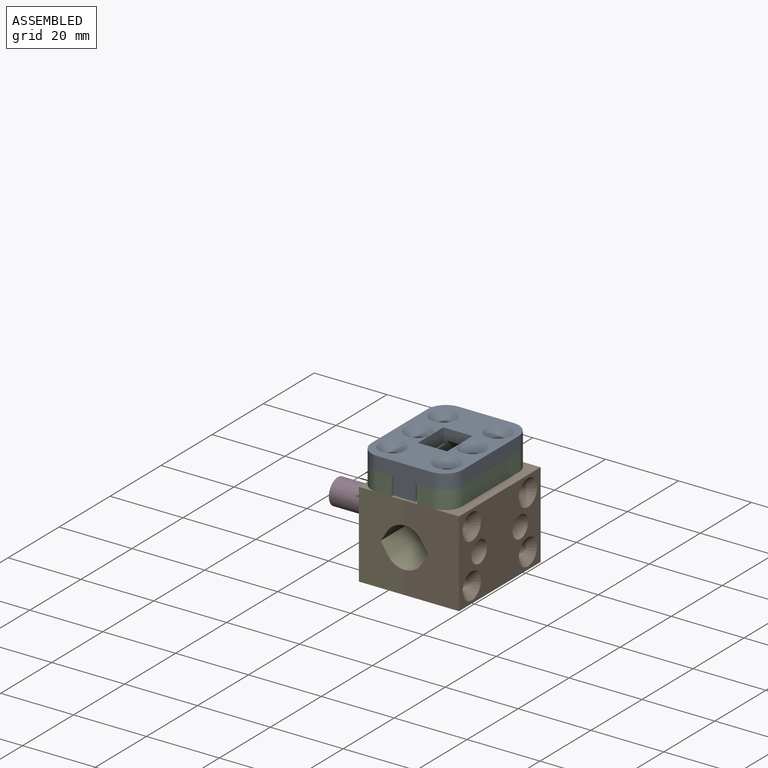
[diagram: assembled view]
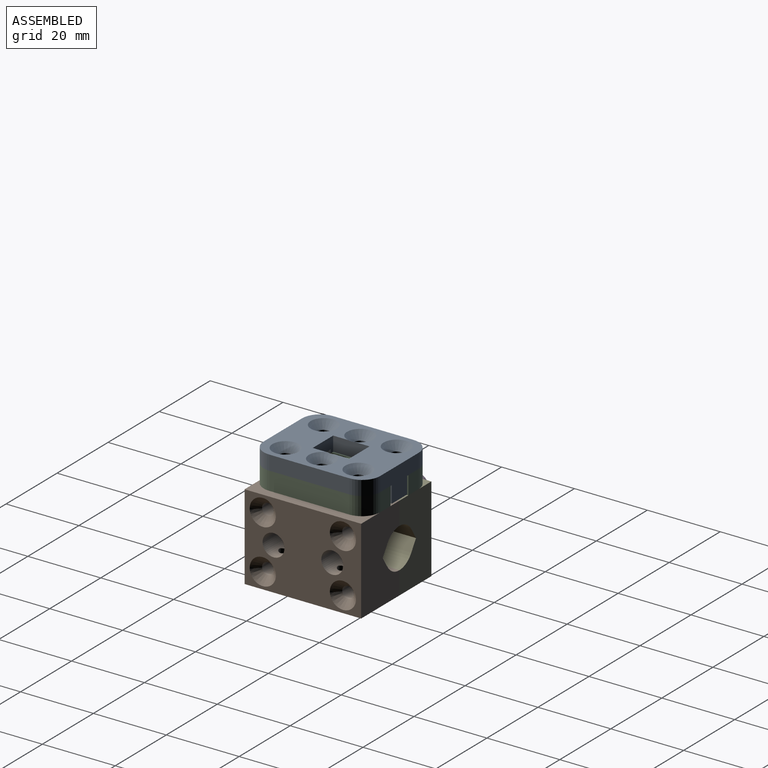
[diagram: assembled view, second angle]
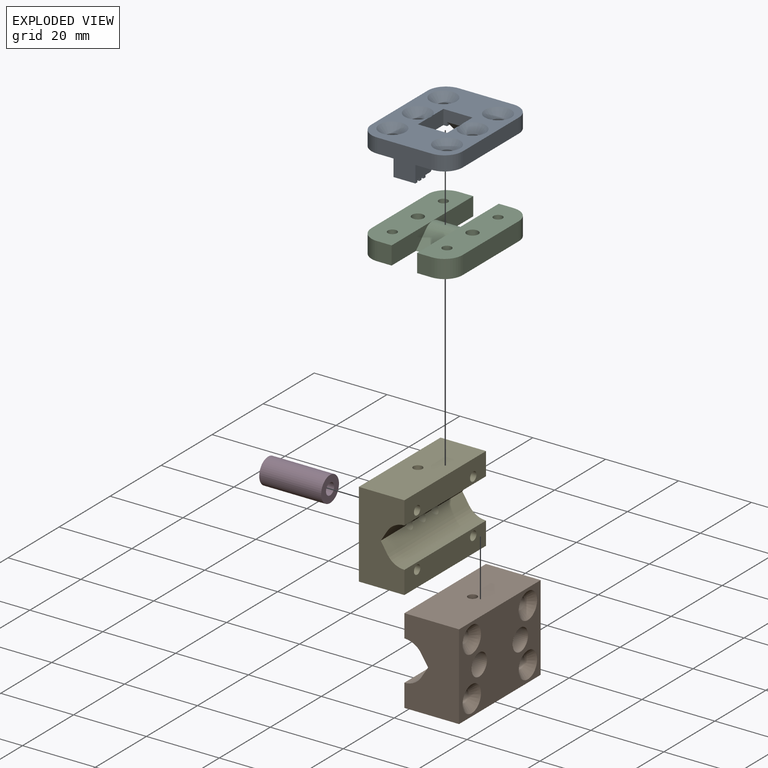
[diagram: exploded view]
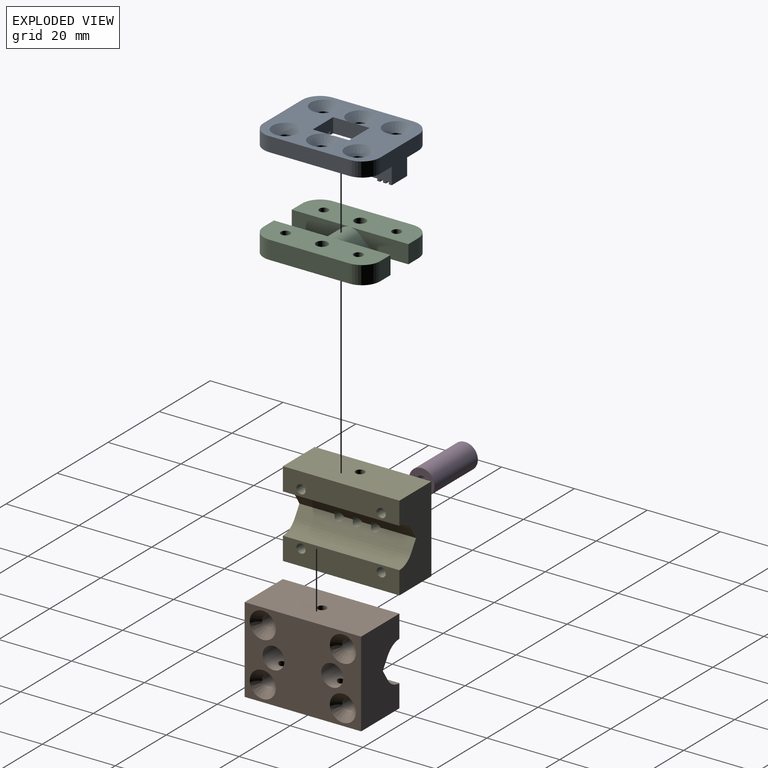
[diagram: exploded view, second angle]
ASSEMBLY  parts=5 mates=4
PART A: 59 faces, bbox 25x32x8.6 mm
  f0: plane 6x0.6mm, normal (0,1,0), area 3.6mm2, adj f1,f14,f15,f16
  f1: plane 6x0.8mm, normal (0,0,-1), area 4.8mm2, adj f0,f2,f15,f16
  f2: plane 6x0.6mm, normal (0,-1,0), area 3.6mm2, adj f1,f3,f15,f16
  f3: plane 6x0.8mm, normal (0,0,-1), area 4.8mm2, adj f2,f4,f15,f16
  f4: plane 6x0.6mm, normal (0,1,0), area 3.6mm2, adj f3,f5,f15,f16
  f5: plane 6x2mm, normal (0,0,-1), area 12mm2, adj f4,f6,f15,f16
  f6: plane 6x5mm, normal (0,0.71,-0.71), area 42.4mm2, adj f5,f7,f15,f16,f18,f24
  f7: plane 8x4mm, normal (0,1,0), area 26mm2, adj f6,f8,f18,f19,f20,f24,f25,f26
  f8: plane 32x25mm, normal (0,0,1), area 454.5mm2, adj f7,f9,f17,f20,f23,f26,f36,f37
  f9: plane 15x8.6mm, normal (0,-1,0), area 87.6mm2, adj f8,f10,f15,f16,f19,f25,f51,f52
  f10: plane 6x0.8mm, normal (0,0,-1), area 4.8mm2, adj f9,f11,f15,f16
  f11: plane 6x0.6mm, normal (0,1,0), area 3.6mm2, adj f10,f12,f15,f16
  f12: plane 6x0.8mm, normal (0,0,-1), area 4.8mm2, adj f11,f13,f15,f16
  f13: plane 6x0.6mm, normal (0,-1,0), area 3.6mm2, adj f12,f14,f15,f16
  f14: plane 6x0.8mm, normal (0,0,-1), area 4.8mm2, adj f0,f13,f15,f16
  f15: plane 10x4.6mm, normal (-1,0,0), area 33.4mm2, adj f0,f1,f2,f3,f4,f5,f6,f9
  f16: plane 10x4.6mm, normal (1,0,0), area 33.4mm2, adj f0,f1,f2,f3,f4,f5,f6,f9
  f17: plane 22x4mm, normal (-1,0,0), area 88mm2, adj f8,f19,f50,f52
  f18: plane 1x1mm, normal (1,0,0), area 0.5mm2, adj f6,f7,f19
  f19: plane 32x9.5mm, normal (0,0,-1), area 259.1mm2, adj f7,f9,f15,f17,f18,f20,f21,f22
  f20: plane 10x4mm, normal (1,0,0), area 39.9mm2, adj f7,f8,f19,f36,f58
  f21: cylinder r=1.6mm len=3.2mm, axis (0,0,-1), area 20.1mm2, adj f19,f58
  f22: cylinder r=1.6mm len=3.2mm, axis (0,0,-1), area 20.1mm2, adj f19,f56
  f23: plane 22x4mm, normal (1,0,0), area 88mm2, adj f8,f25,f49,f51
  f24: plane 1x1mm, normal (-1,0,0), area 0.5mm2, adj f6,f7,f25
  f25: plane 32x9.5mm, normal (0,0,-1), area 259.1mm2, adj f7,f9,f16,f23,f24,f26,f27,f28
  f26: plane 10x4mm, normal (-1,0,0), area 39.9mm2, adj f7,f8,f25,f36,f57
  f27: cylinder r=1.6mm len=3.2mm, axis (0,0,-1), area 20.1mm2, adj f25,f57
  f28: cylinder r=1.6mm len=3.2mm, axis (0,0,-1), area 20.1mm2, adj f25,f55
  f29: plane 6x0.6mm, normal (0,-1,0), area 3.6mm2, adj f30,f42,f43,f44
  f30: plane 6x0.8mm, normal (0,0,-1), area 4.8mm2, adj f29,f31,f43,f44
  f31: plane 6x0.6mm, normal (0,1,0), area 3.6mm2, adj f30,f32,f43,f44
  f32: plane 6x0.8mm, normal (0,0,-1), area 4.8mm2, adj f31,f33,f43,f44
  f33: plane 6x0.6mm, normal (0,-1,0), area 3.6mm2, adj f32,f34,f43,f44
  f34: plane 6x2mm, normal (0,0,-1), area 12mm2, adj f33,f35,f43,f44
  f35: plane 6x5mm, normal (0,-0.71,-0.71), area 42.4mm2, adj f34,f36,f43,f44,f45,f47
  f36: plane 8x4mm, normal (0,-1,0), area 26mm2, adj f8,f19,f20,f25,f26,f35,f45,f47
  f37: plane 15x8.6mm, normal (0,1,0), area 87.6mm2, adj f8,f19,f25,f38,f43,f44,f49,f50
  f38: plane 6x0.8mm, normal (0,0,-1), area 4.8mm2, adj f37,f39,f43,f44
  f39: plane 6x0.6mm, normal (0,-1,0), area 3.6mm2, adj f38,f40,f43,f44
  f40: plane 6x0.8mm, normal (0,0,-1), area 4.8mm2, adj f39,f41,f43,f44
  f41: plane 6x0.6mm, normal (0,1,0), area 3.6mm2, adj f40,f42,f43,f44
  f42: plane 6x0.8mm, normal (0,0,-1), area 4.8mm2, adj f29,f41,f43,f44
  f43: plane 10x4.6mm, normal (-1,0,0), area 33.4mm2, adj f19,f29,f30,f31,f32,f33,f34,f35
  f44: plane 10x4.6mm, normal (1,0,0), area 33.4mm2, adj f25,f29,f30,f31,f32,f33,f34,f35
  f45: plane 1x1mm, normal (1,0,0), area 0.5mm2, adj f19,f35,f36
  f46: cylinder r=1.6mm len=3.2mm, axis (0,0,-1), area 20.1mm2, adj f19,f53
  f47: plane 1x1mm, normal (-1,0,0), area 0.5mm2, adj f25,f35,f36
  f48: cylinder r=1.6mm len=3.2mm, axis (0,0,-1), area 20.1mm2, adj f25,f54
  f49: cylinder r=5mm len=5mm, axis (0,0,1), area 31.4mm2, adj f8,f23,f25,f37
  f50: cylinder r=5mm len=5mm, axis (0,0,1), area 31.4mm2, adj f8,f17,f19,f37
  f51: cylinder r=5mm len=5mm, axis (0,0,1), area 31.4mm2, adj f8,f9,f23,f25
  f52: cylinder r=5mm len=5mm, axis (0,0,1), area 31.4mm2, adj f8,f9,f17,f19
  f53: cone r=3.6mm half-angle=45deg, axis (0,0,1), area 46.2mm2, adj f8,f46
  f54: cone r=1.6mm half-angle=45deg, axis (0,0,1), area 46.2mm2, adj f8,f48
  f55: cone r=3.6mm half-angle=45deg, axis (0,0,1), area 46.2mm2, adj f8,f28
  f56: cone r=1.6mm half-angle=45deg, axis (0,0,1), area 46.2mm2, adj f8,f22
  f57: cone r=3.6mm half-angle=45deg, axis (0,0,1), area 46mm2, adj f8,f26,f27
  f58: cone r=1.6mm half-angle=45deg, axis (0,0,1), area 46mm2, adj f8,f20,f21
PART B: 29 faces, bbox 15x32x23.5 mm
  f0: plane 7.31x2.93mm, normal (-0.85,0,-0.53), area 19.2mm2, adj f2,f6,f12,f14
  f1: plane 14.82x2.93mm, normal (-0.85,0,-0.53), area 39.1mm2, adj f2,f4,f13,f14
  f2: cylinder r=5.5mm len=32mm, axis (0,-1,0), area 177.4mm2, adj f0,f1,f6,f7,f11,f13,f14,f27
  f3: cylinder r=5.5mm len=32mm, axis (0,-1,0), area 177.4mm2, adj f4,f5,f6,f7,f12,f13,f14,f28
  f4: plane 14.82x2.93mm, normal (-0.85,0,0.53), area 39.1mm2, adj f1,f3,f13,f14
  f5: plane 7.31x2.93mm, normal (-0.85,0,0.53), area 19.2mm2, adj f3,f7,f11,f13
  f6: plane 23.5x15mm, normal (0,-1,0), area 302.9mm2, adj f0,f2,f3,f8,f9,f10,f12,f27
  f7: plane 23.5x15mm, normal (0,1,0), area 302.9mm2, adj f2,f3,f5,f8,f9,f10,f11,f27
  f8: plane 32x15mm, normal (0,0,1), area 475.1mm2, adj f6,f7,f10,f25,f27
  f9: plane 32x15mm, normal (0,0,-1), area 470.2mm2, adj f6,f7,f10,f15,f16,f28
  f10: plane 32x23.5mm, normal (1,0,0), area 532.6mm2, adj f6,f7,f8,f9,f13,f14,f21,f22
  f11: plane 7.31x2.93mm, normal (-0.85,0,-0.53), area 19.2mm2, adj f2,f5,f7,f13
  f12: plane 7.31x2.93mm, normal (-0.85,0,0.53), area 19.2mm2, adj f0,f3,f6,f14
  f13: cylinder r=3mm len=10.39mm, axis (-1,0,0), area 177.9mm2, adj f1,f2,f3,f4,f5,f10,f11,f16
  f14: cylinder r=3mm len=10.39mm, axis (-1,0,0), area 177.9mm2, adj f0,f1,f2,f3,f4,f10,f12,f15
  f15: cylinder r=1.25mm len=9.02mm, axis (0,0,1), area 69.8mm2, adj f9,f14
  f16: cylinder r=1.25mm len=9.02mm, axis (0,0,1), area 69.8mm2, adj f9,f13
  f17: cylinder r=1.6mm len=13mm, axis (-1,0,0), area 130.7mm2, adj f24,f28
  f18: cylinder r=1.6mm len=13mm, axis (-1,0,0), area 130.7mm2, adj f23,f28
  f19: cylinder r=1.6mm len=13mm, axis (-1,0,0), area 130.7mm2, adj f22,f27
  f20: cylinder r=1.6mm len=13mm, axis (-1,0,0), area 130.7mm2, adj f21,f27
  f21: cone r=3.6mm half-angle=45deg, axis (1,0,0), area 46.2mm2, adj f10,f20
  f22: cone r=3.6mm half-angle=45deg, axis (1,0,0), area 46.2mm2, adj f10,f19
  f23: cone r=3.6mm half-angle=45deg, axis (1,0,0), area 46.2mm2, adj f10,f18
  f24: cone r=3.6mm half-angle=45deg, axis (1,0,0), area 46.2mm2, adj f10,f17
  f25: cylinder r=1.25mm len=10mm, axis (0,0,1), area 78.5mm2, adj f8,f26
  f26: plane 2.5x2.5mm, normal (0,0,1), area 4.9mm2, adj f25
  f27: plane 32x6.25mm, normal (-1,0,0), area 183.9mm2, adj f2,f6,f7,f8,f19,f20
  f28: plane 32x6.25mm, normal (-1,0,0), area 183.9mm2, adj f3,f6,f7,f9,f17,f18
PART C: 26 faces, bbox 25x32x5 mm
  f0: cylinder r=3.54mm len=7mm, axis (-1,0,0), area 38.9mm2, adj f1,f3,f4,f5,f13,f20
  f1: plane 7x3.96mm, normal (0,-0.71,0.71), area 39.2mm2, adj f0,f2,f5,f20
  f2: plane 32x25mm, normal (0,0,-1), area 609.3mm2, adj f1,f3,f4,f5,f6,f7,f8,f9
  f3: plane 7x3.96mm, normal (0,0.71,0.71), area 39.2mm2, adj f0,f2,f4,f13
  f4: plane 16x5mm, normal (1,0,0), area 60.4mm2, adj f0,f2,f3,f6,f12
  f5: plane 16x5mm, normal (1,0,0), area 60.4mm2, adj f0,f1,f2,f10,f12
  f6: plane 5x4mm, normal (0,1,0), area 20mm2, adj f2,f4,f12,f22
  f7: plane 22x5mm, normal (-1,0,0), area 110mm2, adj f2,f12,f22,f23
  f8: cylinder r=1.25mm len=5mm, axis (0,0,-1), area 39.3mm2, adj f2,f12
  f9: cylinder r=1.25mm len=5mm, axis (0,0,-1), area 39.3mm2, adj f2,f12
  f10: plane 5x4mm, normal (0,-1,0), area 20mm2, adj f2,f5,f12,f23
  f11: cylinder r=1.6mm len=5mm, axis (0,0,-1), area 50.3mm2, adj f2,f12
  f12: plane 32x9mm, normal (0,0,1), area 259.4mm2, adj f4,f5,f6,f7,f8,f9,f10,f11
  f13: plane 16x5mm, normal (-1,0,0), area 60.4mm2, adj f0,f2,f3,f16,f21
  f14: plane 5x4mm, normal (0,-1,0), area 20mm2, adj f2,f20,f21,f24
  f15: plane 22x5mm, normal (1,0,0), area 110mm2, adj f2,f21,f24,f25
  f16: plane 5x4mm, normal (0,1,0), area 20mm2, adj f2,f13,f21,f25
  f17: cylinder r=1.25mm len=5mm, axis (0,0,-1), area 39.3mm2, adj f2,f21
  f18: cylinder r=1.25mm len=5mm, axis (0,0,-1), area 39.3mm2, adj f2,f21
  f19: cylinder r=1.6mm len=5mm, axis (0,0,-1), area 50.3mm2, adj f2,f21
  f20: plane 16x5mm, normal (-1,0,0), area 60.4mm2, adj f0,f1,f2,f14,f21
  f21: plane 32x9mm, normal (0,0,1), area 259.4mm2, adj f13,f14,f15,f16,f17,f18,f19,f20
  f22: cylinder r=5mm len=5mm, axis (0,0,-1), area 39.3mm2, adj f2,f6,f7,f12
  f23: cylinder r=5mm len=5mm, axis (0,0,1), area 39.3mm2, adj f2,f7,f10,f12
  f24: cylinder r=5mm len=5mm, axis (0,0,1), area 39.3mm2, adj f2,f14,f15,f21
  f25: cylinder r=5mm len=5mm, axis (0,0,-1), area 39.3mm2, adj f2,f15,f16,f21
PART D: 4 faces, bbox 17x7x7 mm
  f0: plane 7x7mm, normal (-1,0,0), area 30.4mm2, adj f1,f2
  f1: cylinder r=1.6mm len=17mm, axis (1,0,0), area 170.9mm2, adj f0,f3
  f2: cylinder r=3.5mm len=17mm, axis (1,0,0), area 373.8mm2, adj f0,f3
  f3: plane 7x7mm, normal (1,0,0), area 30.4mm2, adj f1,f2
PART E: 20 faces, bbox 12.5x32x23.5 mm
  f0: plane 2.5x2.5mm, normal (0,0,1), area 4.9mm2, adj f6
  f1: cylinder r=1.25mm len=6.79mm, axis (1,0,0), area 51.1mm2, adj f4,f5,f13
  f2: cylinder r=1.25mm len=6.79mm, axis (1,0,0), area 51.1mm2, adj f4,f5,f13
  f3: cylinder r=1.25mm len=6.79mm, axis (1,0,0), area 51.1mm2, adj f4,f5,f13
  f4: plane 32x2.93mm, normal (0.85,0,0.53), area 102.1mm2, adj f1,f2,f3,f5,f16,f17,f18
  f5: plane 32x2.93mm, normal (0.85,0,-0.53), area 102.1mm2, adj f1,f2,f3,f4,f16,f17,f19
  f6: cylinder r=1.25mm len=10mm, axis (0,0,1), area 78.5mm2, adj f0,f14
  f7: cylinder r=1.25mm len=12.5mm, axis (1,0,0), area 98.2mm2, adj f12,f13
  f8: cylinder r=1.25mm len=12.5mm, axis (1,0,0), area 98.2mm2, adj f10,f13
  f9: cylinder r=1.25mm len=12.5mm, axis (1,0,0), area 98.2mm2, adj f10,f13
  f10: plane 32x6.25mm, normal (1,0,0), area 190.2mm2, adj f8,f9,f14,f16,f17,f19
  f11: cylinder r=1.25mm len=12.5mm, axis (1,0,0), area 98.2mm2, adj f12,f13
  f12: plane 32x6.25mm, normal (1,0,0), area 190.2mm2, adj f7,f11,f15,f16,f17,f18
  f13: plane 32x23.5mm, normal (-1,0,0), area 717.6mm2, adj f1,f2,f3,f7,f8,f9,f11,f14
  f14: plane 32x12.5mm, normal (0,0,1), area 395.1mm2, adj f6,f10,f13,f16,f17
  f15: plane 32x12.5mm, normal (0,0,-1), area 400mm2, adj f12,f13,f16,f17
  f16: plane 23.5x12.5mm, normal (0,1,0), area 244.2mm2, adj f4,f5,f10,f12,f13,f14,f15,f18
  f17: plane 23.5x12.5mm, normal (0,-1,0), area 244.2mm2, adj f4,f5,f10,f12,f13,f14,f15,f18
  f18: cylinder r=5.5mm len=32mm, axis (0,-1,0), area 177.5mm2, adj f4,f12,f16,f17
  f19: cylinder r=5.5mm len=32mm, axis (0,-1,0), area 177.5mm2, adj f5,f10,f16,f17
PLACE A at identity
PLACE B at identity fixed
PLACE C at identity
PLACE D at identity
PLACE E at identity
MATE fastened D.f2 <-> E.f1  axis (1,0,0) through (-12.5,0,0)mm
MATE fastened E.f9 <-> B.f20  axis (1,0,0) through (0,-11,7.35)mm
MATE fastened C.f19 <-> B.f25  axis (0,0,-1) through (7.5,0,11.75)mm
MATE fastened A.f48 <-> C.f18  axis (0,0,-1) through (7.5,10,16.75)mm
